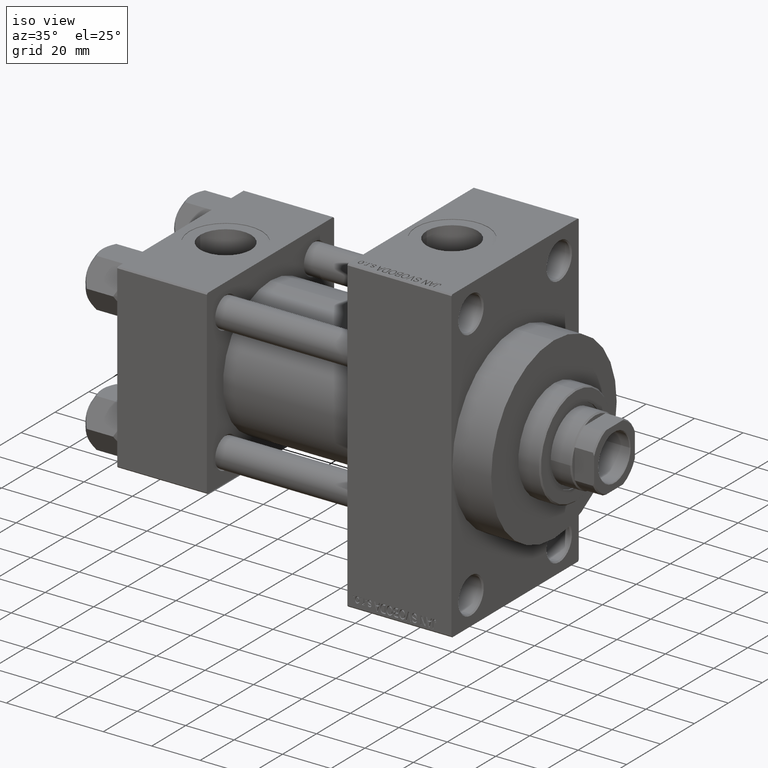
[diagram: clean part render]
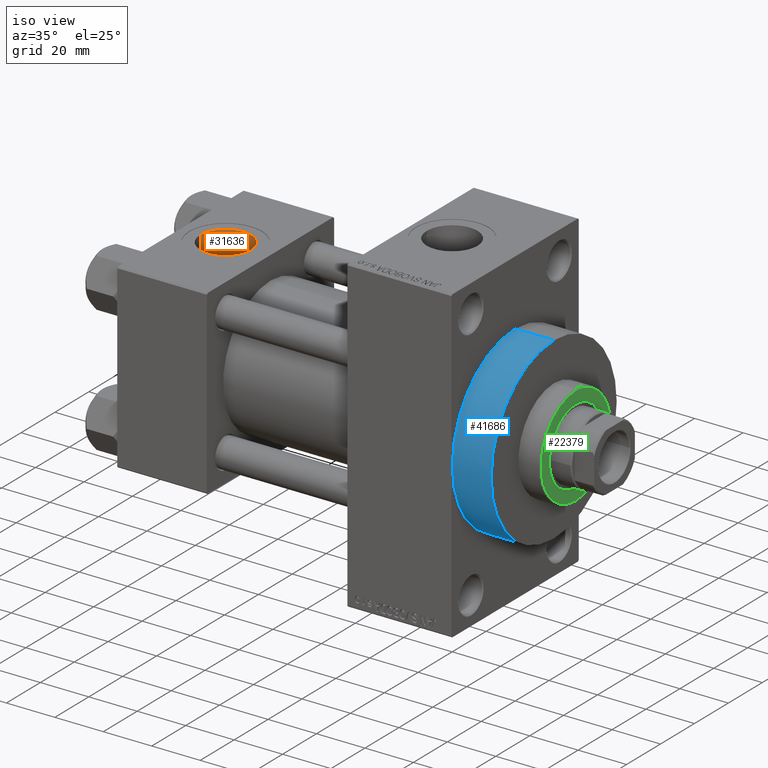
[diagram: same view with three faces highlighted in distinct colors, each labeled with its STEP entity id]
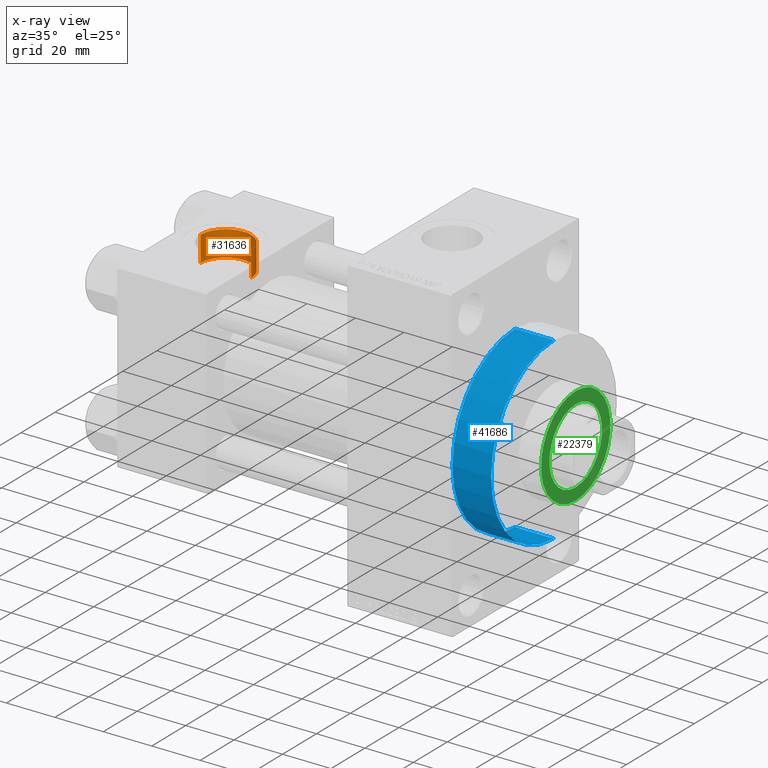
[diagram: x-ray of the same camera — body ghosted, the three highlighted faces saturated]
A machine part, iso view with three faces highlighted in distinct colors.
The next image is the same camera in x-ray (body ghosted, the three faces saturated) — at least one of them is partly hidden behind the body in this view.
Their STEP definitions:

[orange] entity #31636 — the highlighted cylindrical surface (edge-blend (fillet) strip) has radius 10.48 mm, axis along (0, 0, 1).
#441 = AXIS2_PLACEMENT_3D ( 'NONE', #18729, #18491, #663 ) ;
#663 = DIRECTION ( 'NONE',  ( 1.000000000000000000, 0.000000000000000000, 0.000000000000000000 ) ) ;
#2359 = LINE ( 'NONE', #2857, #6839 ) ;
#2783 = ORIENTED_EDGE ( 'NONE', *, *, #11509, .T. ) ;
#2857 = CARTESIAN_POINT ( 'NONE',  ( 28.98000000000000043, -5.204170427930421283E-15, 26.69999999999999929 ) ) ;
#3776 = AXIS2_PLACEMENT_3D ( 'NONE', #13558, #32632, #9874 ) ;
#4658 = ORIENTED_EDGE ( 'NONE', *, *, #12123, .T. ) ;
#6839 = VECTOR ( 'NONE', #24878, 1000.000000000000000 ) ;
#8506 = CIRCLE ( 'NONE', #3776, 10.48000000000000043 ) ;
#9874 = DIRECTION ( 'NONE',  ( 1.000000000000000000, 0.000000000000000000, 0.000000000000000000 ) ) ;
#10020 = VERTEX_POINT ( 'NONE', #39396 ) ;
#10603 = DIRECTION ( 'NONE',  ( -0.000000000000000000, -0.000000000000000000, 1.000000000000000000 ) ) ;
#11509 = EDGE_CURVE ( 'NONE', #30098, #10020, #24931, .T. ) ;
#12123 = EDGE_CURVE ( 'NONE', #15532, #30098, #2359, .T. ) ;
#13558 = CARTESIAN_POINT ( 'NONE',  ( 18.50000000000000000, -5.204170427930421283E-15, 26.69999999999999929 ) ) ;
#14120 = EDGE_CURVE ( 'NONE', #21312, #10020, #36596, .T. ) ;
#15532 = VERTEX_POINT ( 'NONE', #34208 ) ;
#16675 = DIRECTION ( 'NONE',  ( 1.000000000000000000, 0.000000000000000000, 0.000000000000000000 ) ) ;
#18007 = CARTESIAN_POINT ( 'NONE',  ( 8.019999999999999574, -3.920740582423995006E-15, 26.69999999999999929 ) ) ;
#18491 = DIRECTION ( 'NONE',  ( 0.000000000000000000, 0.000000000000000000, 1.000000000000000000 ) ) ;
#18729 = CARTESIAN_POINT ( 'NONE',  ( 18.50000000000000000, -5.204170427930421283E-15, 37.29999999999999716 ) ) ;
#18855 = AXIS2_PLACEMENT_3D ( 'NONE', #43675, #23862, #16675 ) ;
#19862 = EDGE_CURVE ( 'NONE', #15532, #21312, #8506, .T. ) ;
#21312 = VERTEX_POINT ( 'NONE', #35610 ) ;
#22632 = ORIENTED_EDGE ( 'NONE', *, *, #19862, .F. ) ;
#23862 = DIRECTION ( 'NONE',  ( -0.000000000000000000, -0.000000000000000000, 1.000000000000000000 ) ) ;
#24878 = DIRECTION ( 'NONE',  ( -0.000000000000000000, -0.000000000000000000, 1.000000000000000000 ) ) ;
#24931 = CIRCLE ( 'NONE', #441, 10.48000000000000043 ) ;
#26615 = VECTOR ( 'NONE', #10603, 1000.000000000000000 ) ;
#30098 = VERTEX_POINT ( 'NONE', #42713 ) ;
#30943 = ORIENTED_EDGE ( 'NONE', *, *, #14120, .F. ) ;
#31636 = ADVANCED_FACE ( 'NONE', ( #32047 ), #47380, .F. ) ;
#32047 = FACE_OUTER_BOUND ( 'NONE', #43967, .T. ) ;
#32632 = DIRECTION ( 'NONE',  ( 0.000000000000000000, 0.000000000000000000, 1.000000000000000000 ) ) ;
#34208 = CARTESIAN_POINT ( 'NONE',  ( 28.98000000000000043, -5.204170427930421283E-15, 26.69999999999999929 ) ) ;
#35610 = CARTESIAN_POINT ( 'NONE',  ( 8.019999999999999574, -3.920740582423995006E-15, 26.69999999999999929 ) ) ;
#36596 = LINE ( 'NONE', #18007, #26615 ) ;
#39396 = CARTESIAN_POINT ( 'NONE',  ( 8.019999999999999574, -3.920740582423995006E-15, 37.29999999999999716 ) ) ;
#42713 = CARTESIAN_POINT ( 'NONE',  ( 28.98000000000000043, -5.204170427930421283E-15, 37.29999999999999716 ) ) ;
#43675 = CARTESIAN_POINT ( 'NONE',  ( 18.50000000000000000, -5.204170427930421283E-15, 26.69999999999999929 ) ) ;
#43967 = EDGE_LOOP ( 'NONE', ( #30943, #22632, #4658, #2783 ) ) ;
#47380 = CYLINDRICAL_SURFACE ( 'NONE', #18855, 10.48000000000000043 ) ;

[blue] entity #41686 — the highlighted cylindrical surface (partial cylindrical patch) has radius 37 mm, axis along (-1, -0, -0).
#675 = LINE ( 'NONE', #34583, #48295 ) ;
#1940 = CARTESIAN_POINT ( 'NONE',  ( 154.0000000000000284, 4.531193156845206793E-15, -37.00000000000000000 ) ) ;
#3550 = FACE_OUTER_BOUND ( 'NONE', #22673, .T. ) ;
#4238 = EDGE_CURVE ( 'NONE', #41913, #34605, #47975, .T. ) ;
#4741 = DIRECTION ( 'NONE',  ( 1.000000000000000000, 0.000000000000000000, 0.000000000000000000 ) ) ;
#5032 = AXIS2_PLACEMENT_3D ( 'NONE', #41629, #4741, #22781 ) ;
#5888 = CIRCLE ( 'NONE', #12179, 37.00000000000000000 ) ;
#6722 = EDGE_CURVE ( 'NONE', #37067, #34605, #11334, .T. ) ;
#8040 = DIRECTION ( 'NONE',  ( 1.000000000000000000, 0.000000000000000000, 0.000000000000000000 ) ) ;
#8549 = EDGE_CURVE ( 'NONE', #36014, #41913, #5888, .T. ) ;
#11334 = CIRCLE ( 'NONE', #5032, 37.00000000000000000 ) ;
#12037 = VECTOR ( 'NONE', #20976, 1000.000000000000000 ) ;
#12060 = DIRECTION ( 'NONE',  ( -1.000000000000000000, -0.000000000000000000, -0.000000000000000000 ) ) ;
#12179 = AXIS2_PLACEMENT_3D ( 'NONE', #15430, #8040, #27080 ) ;
#15430 = CARTESIAN_POINT ( 'NONE',  ( 154.0000000000000284, 0.000000000000000000, 0.000000000000000000 ) ) ;
#18613 = CYLINDRICAL_SURFACE ( 'NONE', #35748, 37.00000000000000000 ) ;
#20771 = ORIENTED_EDGE ( 'NONE', *, *, #8549, .F. ) ;
#20976 = DIRECTION ( 'NONE',  ( -1.000000000000000000, -0.000000000000000000, -0.000000000000000000 ) ) ;
#22673 = EDGE_LOOP ( 'NONE', ( #45790, #20771, #28220, #27167 ) ) ;
#22781 = DIRECTION ( 'NONE',  ( 0.000000000000000000, 0.000000000000000000, -1.000000000000000000 ) ) ;
#22796 = CARTESIAN_POINT ( 'NONE',  ( 154.0000000000000284, 0.000000000000000000, 0.000000000000000000 ) ) ;
#25378 = CARTESIAN_POINT ( 'NONE',  ( 138.0000000000000000, 0.000000000000000000, 37.00000000000000000 ) ) ;
#26904 = EDGE_CURVE ( 'NONE', #36014, #37067, #675, .T. ) ;
#27080 = DIRECTION ( 'NONE',  ( 0.000000000000000000, 0.000000000000000000, -1.000000000000000000 ) ) ;
#27167 = ORIENTED_EDGE ( 'NONE', *, *, #6722, .T. ) ;
#28220 = ORIENTED_EDGE ( 'NONE', *, *, #26904, .T. ) ;
#28310 = CARTESIAN_POINT ( 'NONE',  ( 154.0000000000000284, 0.000000000000000000, 37.00000000000000000 ) ) ;
#30117 = CARTESIAN_POINT ( 'NONE',  ( 138.0000000000000000, 4.531193156845206793E-15, -37.00000000000000000 ) ) ;
#33732 = DIRECTION ( 'NONE',  ( 0.000000000000000000, 0.000000000000000000, 1.000000000000000000 ) ) ;
#34583 = CARTESIAN_POINT ( 'NONE',  ( 154.0000000000000284, 0.000000000000000000, 37.00000000000000000 ) ) ;
#34605 = VERTEX_POINT ( 'NONE', #30117 ) ;
#35748 = AXIS2_PLACEMENT_3D ( 'NONE', #22796, #37923, #33732 ) ;
#36014 = VERTEX_POINT ( 'NONE', #28310 ) ;
#37067 = VERTEX_POINT ( 'NONE', #25378 ) ;
#37923 = DIRECTION ( 'NONE',  ( -1.000000000000000000, -0.000000000000000000, -0.000000000000000000 ) ) ;
#41629 = CARTESIAN_POINT ( 'NONE',  ( 138.0000000000000000, 0.000000000000000000, 0.000000000000000000 ) ) ;
#41686 = ADVANCED_FACE ( 'NONE', ( #3550 ), #18613, .T. ) ;
#41913 = VERTEX_POINT ( 'NONE', #43516 ) ;
#43516 = CARTESIAN_POINT ( 'NONE',  ( 154.0000000000000284, 4.531193156845206793E-15, -37.00000000000000000 ) ) ;
#45790 = ORIENTED_EDGE ( 'NONE', *, *, #4238, .F. ) ;
#47975 = LINE ( 'NONE', #1940, #12037 ) ;
#48295 = VECTOR ( 'NONE', #12060, 1000.000000000000000 ) ;

[green] entity #22379 — the highlighted planar face has unit normal (1, -0, -0).
#193 = DIRECTION ( 'NONE',  ( 0.000000000000000000, 0.000000000000000000, 1.000000000000000000 ) ) ;
#679 = DIRECTION ( 'NONE',  ( 1.000000000000000000, 0.000000000000000000, 0.000000000000000000 ) ) ;
#2736 = ORIENTED_EDGE ( 'NONE', *, *, #24841, .F. ) ;
#3708 = AXIS2_PLACEMENT_3D ( 'NONE', #34340, #193, #679 ) ;
#4390 = CARTESIAN_POINT ( 'NONE',  ( 15.50000000000000000, 0.000000000000000000, 52.25999999999999801 ) ) ;
#5367 = VERTEX_POINT ( 'NONE', #4390 ) ;
#5406 = ORIENTED_EDGE ( 'NONE', *, *, #16628, .F. ) ;
#5770 = CARTESIAN_POINT ( 'NONE',  ( 0.000000000000000000, 0.000000000000000000, 52.25999999999999801 ) ) ;
#8211 = AXIS2_PLACEMENT_3D ( 'NONE', #18143, #40706, #47636 ) ;
#13402 = DIRECTION ( 'NONE',  ( 0.000000000000000000, 0.000000000000000000, 1.000000000000000000 ) ) ;
#13433 = CIRCLE ( 'NONE', #37161, 15.50000000000000000 ) ;
#14295 = CARTESIAN_POINT ( 'NONE',  ( -15.50000000000000000, 1.898202538678397557E-15, 52.25999999999999801 ) ) ;
#16628 = EDGE_CURVE ( 'NONE', #5367, #35494, #30534, .T. ) ;
#16916 = EDGE_CURVE ( 'NONE', #23788, #18285, #25818, .T. ) ;
#17071 = AXIS2_PLACEMENT_3D ( 'NONE', #26244, #41833, #34399 ) ;
#18143 = CARTESIAN_POINT ( 'NONE',  ( 0.000000000000000000, 0.000000000000000000, 52.25999999999999801 ) ) ;
#18285 = VERTEX_POINT ( 'NONE', #31020 ) ;
#18954 = EDGE_LOOP ( 'NONE', ( #5406, #2736 ) ) ;
#21313 = DIRECTION ( 'NONE',  ( 1.000000000000000000, 0.000000000000000000, -0.000000000000000000 ) ) ;
#22254 = ORIENTED_EDGE ( 'NONE', *, *, #45595, .T. ) ;
#22379 = ADVANCED_FACE ( 'NONE', ( #32234, #24543 ), #24789, .T. ) ;
#23788 = VERTEX_POINT ( 'NONE', #43035 ) ;
#24543 = FACE_OUTER_BOUND ( 'NONE', #40709, .T. ) ;
#24789 = PLANE ( 'NONE',  #31550 ) ;
#24841 = EDGE_CURVE ( 'NONE', #35494, #5367, #13433, .T. ) ;
#25818 = CIRCLE ( 'NONE', #3708, 20.50000000000000355 ) ;
#26244 = CARTESIAN_POINT ( 'NONE',  ( 0.000000000000000000, 0.000000000000000000, 52.25999999999999801 ) ) ;
#28897 = ORIENTED_EDGE ( 'NONE', *, *, #16916, .T. ) ;
#30534 = CIRCLE ( 'NONE', #17071, 15.50000000000000000 ) ;
#31020 = CARTESIAN_POINT ( 'NONE',  ( 20.50000000000000355, 2.541142108230758269E-15, 52.25999999999999801 ) ) ;
#31550 = AXIS2_PLACEMENT_3D ( 'NONE', #5770, #13402, #21313 ) ;
#32234 = FACE_BOUND ( 'NONE', #18954, .T. ) ;
#33110 = DIRECTION ( 'NONE',  ( 0.000000000000000000, 0.000000000000000000, 1.000000000000000000 ) ) ;
#34340 = CARTESIAN_POINT ( 'NONE',  ( 0.000000000000000000, 0.000000000000000000, 52.25999999999999801 ) ) ;
#34399 = DIRECTION ( 'NONE',  ( 1.000000000000000000, 0.000000000000000000, 0.000000000000000000 ) ) ;
#35494 = VERTEX_POINT ( 'NONE', #14295 ) ;
#37161 = AXIS2_PLACEMENT_3D ( 'NONE', #40790, #33110, #41509 ) ;
#40706 = DIRECTION ( 'NONE',  ( 0.000000000000000000, 0.000000000000000000, 1.000000000000000000 ) ) ;
#40709 = EDGE_LOOP ( 'NONE', ( #28897, #22254 ) ) ;
#40790 = CARTESIAN_POINT ( 'NONE',  ( 0.000000000000000000, 0.000000000000000000, 52.25999999999999801 ) ) ;
#41509 = DIRECTION ( 'NONE',  ( 1.000000000000000000, 0.000000000000000000, 0.000000000000000000 ) ) ;
#41833 = DIRECTION ( 'NONE',  ( 0.000000000000000000, 0.000000000000000000, 1.000000000000000000 ) ) ;
#43035 = CARTESIAN_POINT ( 'NONE',  ( -20.50000000000000355, 0.000000000000000000, 52.25999999999999801 ) ) ;
#45595 = EDGE_CURVE ( 'NONE', #18285, #23788, #46980, .T. ) ;
#46980 = CIRCLE ( 'NONE', #8211, 20.50000000000000355 ) ;
#47636 = DIRECTION ( 'NONE',  ( 1.000000000000000000, 0.000000000000000000, 0.000000000000000000 ) ) ;